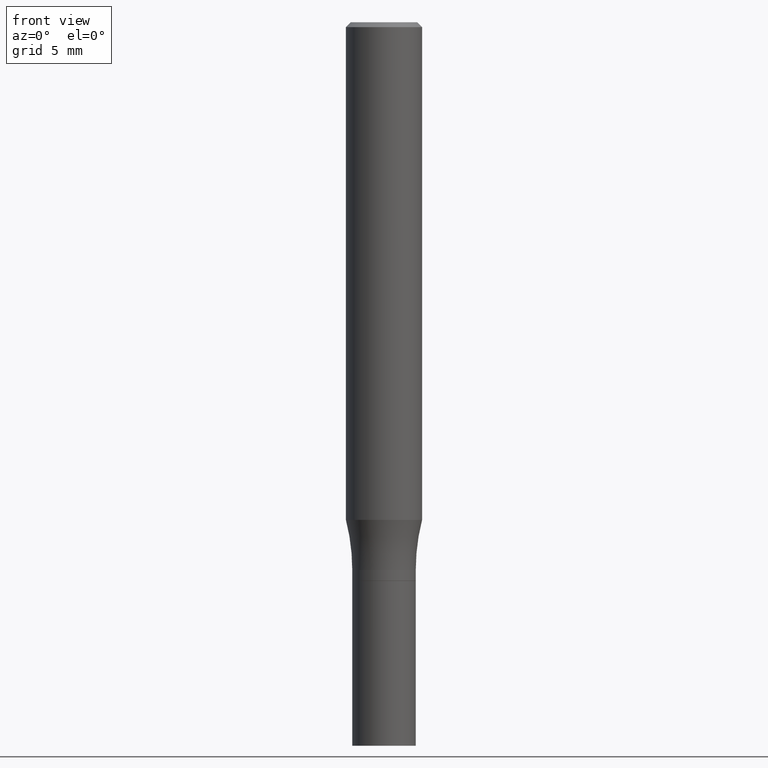
[diagram: clean part render]
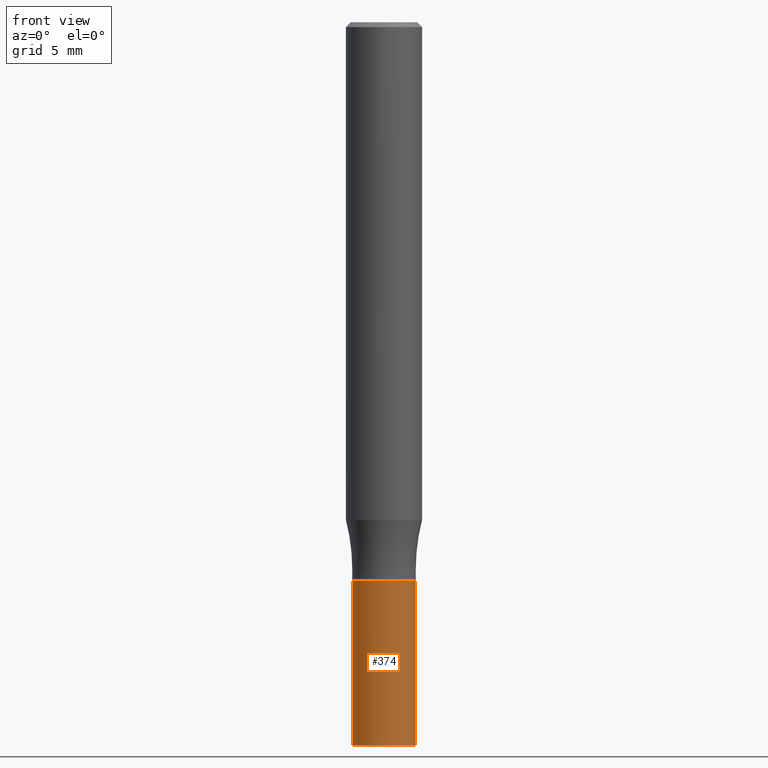
[diagram: same view with one face highlighted and labeled with its STEP entity id]
A machine part, front view. The second image highlights one B-rep face of the part: STEP entity #374.
In plain terms, the highlighted cylindrical surface (edge-blend (fillet) strip) has radius 2.5006 mm, axis along (-0, 0, 1).
Its self-contained STEP definition (entity closure, byte-faithful):
#61 = CIRCLE ( 'NONE', #327, 0.09845000000000000973 ) ;
#62 = ORIENTED_EDGE ( 'NONE', *, *, #261, .T. ) ;
#84 = DIRECTION ( 'NONE',  ( -2.445468806185136877E-29, 3.491481338843145188E-15, 1.000000000000000000 ) ) ;
#91 = VERTEX_POINT ( 'NONE', #127 ) ;
#95 = ORIENTED_EDGE ( 'NONE', *, *, #325, .F. ) ;
#107 = DIRECTION ( 'NONE',  ( 1.000000000000000000, -6.982962677686265133E-15, 0.000000000000000000 ) ) ;
#112 = CARTESIAN_POINT ( 'NONE',  ( 5.487876547960064752E-29, -7.835233272497902340E-15, -2.244099999999999984 ) ) ;
#121 = LINE ( 'NONE', #414, #230 ) ;
#127 = CARTESIAN_POINT ( 'NONE',  ( 0.09845000000000000973, -8.522705948116114900E-15, -2.244099999999999984 ) ) ;
#137 = DIRECTION ( 'NONE',  ( 1.000000000000000000, -6.982962677686265133E-15, 0.000000000000000000 ) ) ;
#146 = DIRECTION ( 'NONE',  ( 1.000000000000000000, -6.982962677686266711E-15, 4.876176775795935793E-29 ) ) ;
#152 = CARTESIAN_POINT ( 'NONE',  ( -0.09845000000000000973, 6.995293233558187021E-16, -4.842691596355954742E-30 ) ) ;
#153 = AXIS2_PLACEMENT_3D ( 'NONE', #405, #359, #146 ) ;
#162 = ORIENTED_EDGE ( 'NONE', *, *, #210, .F. ) ;
#210 = EDGE_CURVE ( 'NONE', #281, #463, #232, .T. ) ;
#230 = VECTOR ( 'NONE', #84, 39.37007874015748143 ) ;
#232 = LINE ( 'NONE', #152, #336 ) ;
#234 = CARTESIAN_POINT ( 'NONE',  ( 0.09845000000000000973, -6.735765798896194427E-15, -1.732299999999999951 ) ) ;
#247 = CIRCLE ( 'NONE', #399, 0.09845000000000000973 ) ;
#251 = ORIENTED_EDGE ( 'NONE', *, *, #433, .T. ) ;
#261 = EDGE_CURVE ( 'NONE', #91, #268, #121, .T. ) ;
#268 = VERTEX_POINT ( 'NONE', #234 ) ;
#281 = VERTEX_POINT ( 'NONE', #372 ) ;
#318 = FACE_OUTER_BOUND ( 'NONE', #417, .T. ) ;
#322 = CARTESIAN_POINT ( 'NONE',  ( 4.236285612954512392E-29, -6.048293123277981078E-15, -1.732299999999999951 ) ) ;
#325 = EDGE_CURVE ( 'NONE', #463, #268, #247, .T. ) ;
#327 = AXIS2_PLACEMENT_3D ( 'NONE', #112, #443, #107 ) ;
#335 = DIRECTION ( 'NONE',  ( -2.445468806185136877E-29, 3.491481338843145188E-15, 1.000000000000000000 ) ) ;
#336 = VECTOR ( 'NONE', #335, 39.37007874015748143 ) ;
#358 = CYLINDRICAL_SURFACE ( 'NONE', #153, 0.09845000000000000973 ) ;
#359 = DIRECTION ( 'NONE',  ( -2.445468806185136597E-29, 3.491481338843145583E-15, 1.000000000000000000 ) ) ;
#372 = CARTESIAN_POINT ( 'NONE',  ( -0.09845000000000000973, -6.242233874532123993E-15, -2.244099999999999984 ) ) ;
#373 = CARTESIAN_POINT ( 'NONE',  ( -0.09845000000000000973, -6.242233874532123993E-15, -1.732299999999999951 ) ) ;
#374 = ADVANCED_FACE ( 'NONE', ( #318 ), #358, .T. ) ;
#399 = AXIS2_PLACEMENT_3D ( 'NONE', #322, #436, #137 ) ;
#405 = CARTESIAN_POINT ( 'NONE',  ( 0.000000000000000000, 0.000000000000000000, 0.000000000000000000 ) ) ;
#414 = CARTESIAN_POINT ( 'NONE',  ( 0.09845000000000000973, -6.874726756182130531E-16, 4.800596035771099214E-30 ) ) ;
#417 = EDGE_LOOP ( 'NONE', ( #162, #251, #62, #95 ) ) ;
#433 = EDGE_CURVE ( 'NONE', #281, #91, #61, .T. ) ;
#436 = DIRECTION ( 'NONE',  ( -2.445468806185136597E-29, 3.491481338843145583E-15, 1.000000000000000000 ) ) ;
#443 = DIRECTION ( 'NONE',  ( -2.445468806185136597E-29, 3.491481338843145583E-15, 1.000000000000000000 ) ) ;
#463 = VERTEX_POINT ( 'NONE', #373 ) ;